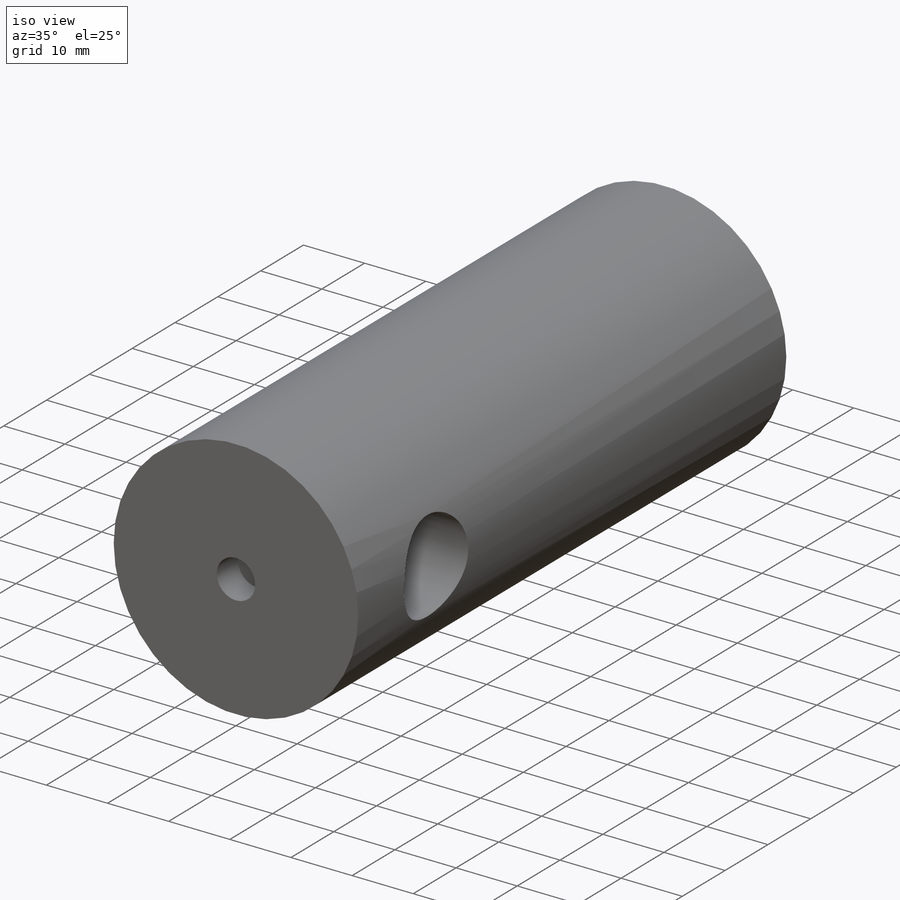
[diagram: iso view]
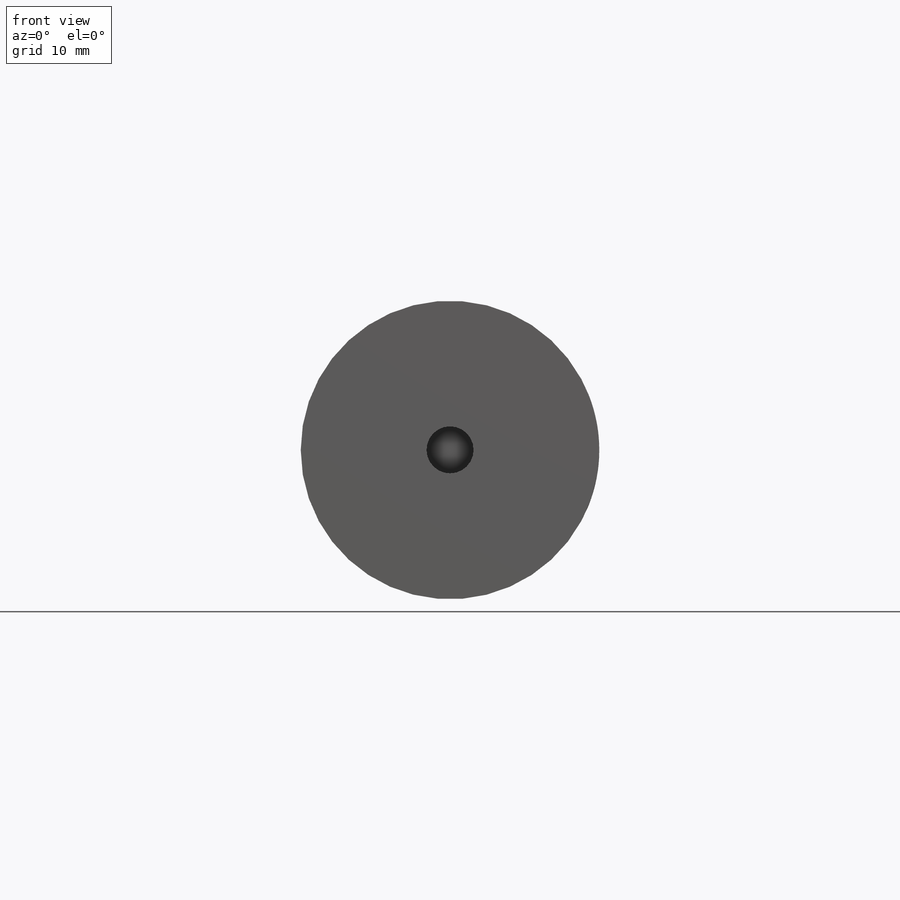
[diagram: front view]
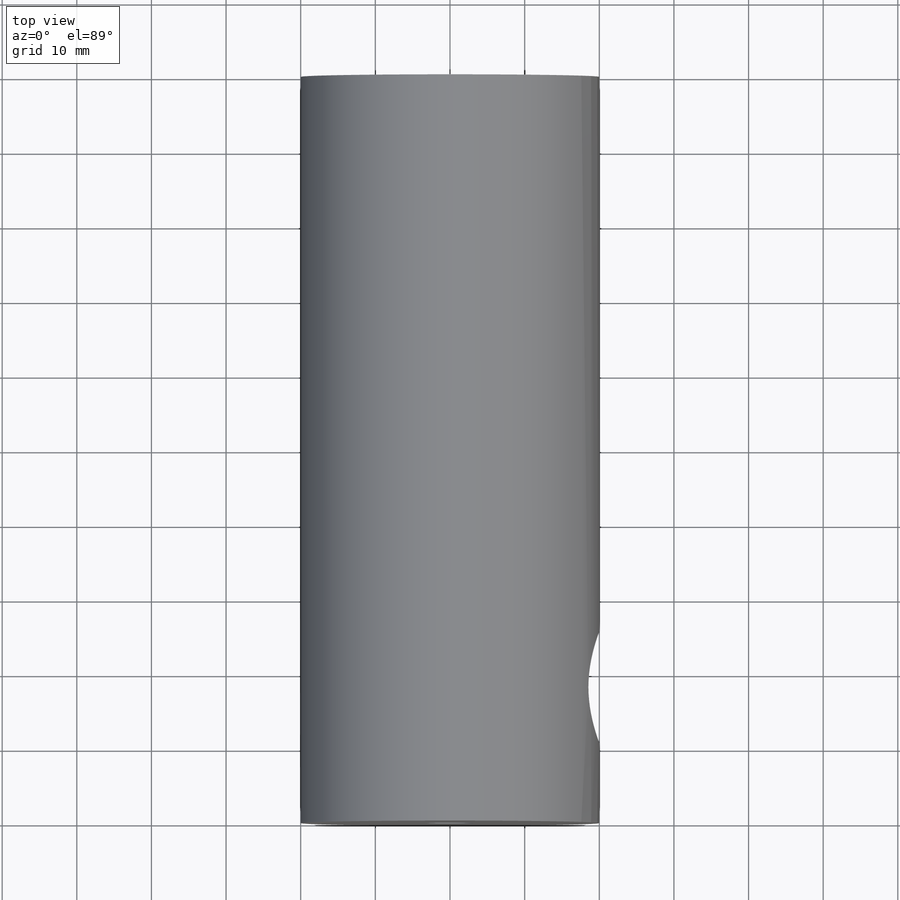
[diagram: top view]
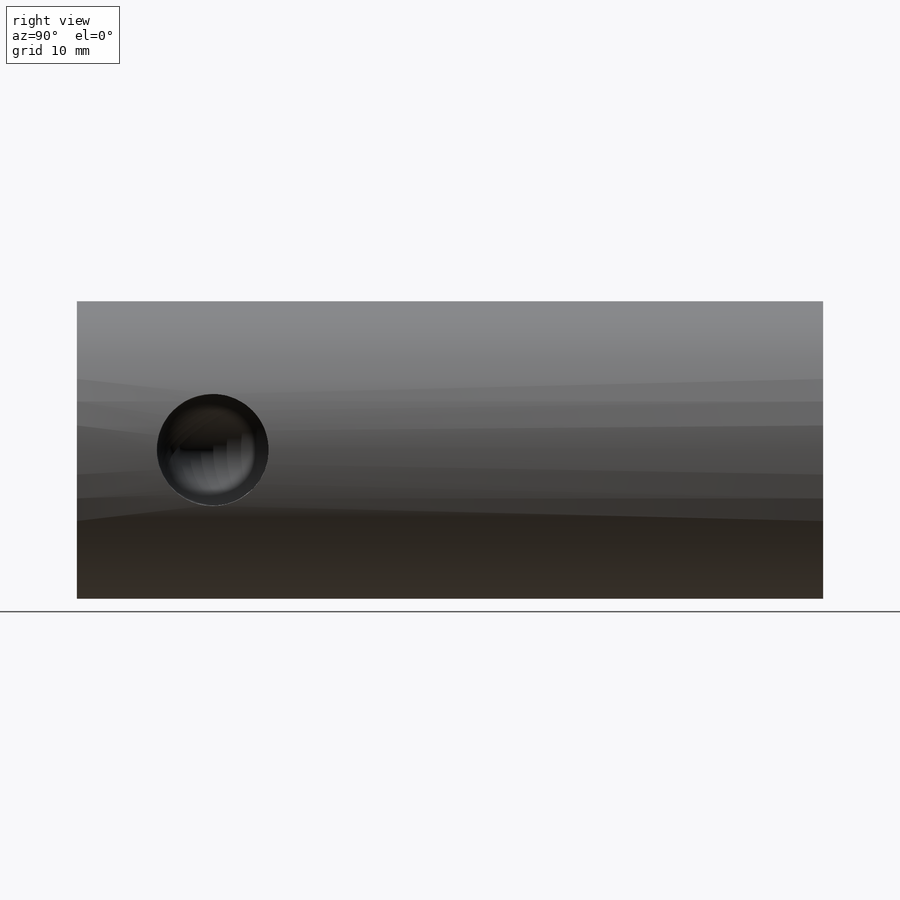
[diagram: right view]
SOLIDWORKS PART (.sldprt)
format: sldprt  version: not decoded by parser v0  size: 243,200 bytes
history: native  units: mm
features: sketch x6, cut_extrude x2, material x1, extrude x1, sweep x1 (+13 scaffold rows collapsed)
feature tree (24):
  scaffold x13  (default folders/planes/origin — collapsed)
  material  "Material <not specified>"
  sketch  "Sketch1"  dims[D1=40.0mm]
  extrude  "Boss-Extrude1"  Depth=100mm
  sketch  "Sketch2"  dims[D1=15.0mm]
  sketch  "Sketch3"  dims[D1=6.3mm]
  cut_extrude  "Cut-Extrude2"  Depth=5mm
  sketch  "Sketch4"  dims[D1=10.0mm]
  sweep  "Cut-Sweep1"
  sketch  "Sketch5"  dims[D1=19.5mm]
  sketch  "Sketch6"  dims[D1=19.5mm D2=2.5mm D3=5.0mm D4=4.0mm]
  cut_extrude  "Cut-Extrude3"  Depth=10mm
decode coverage: 9 of 10 modeling features carry decoded parameters
note: suppression state not decoded; provenance and decode notes live in map.json
